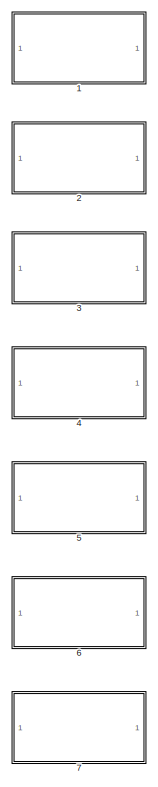
[diagram: root canvas - part 1/4, left side, full height]
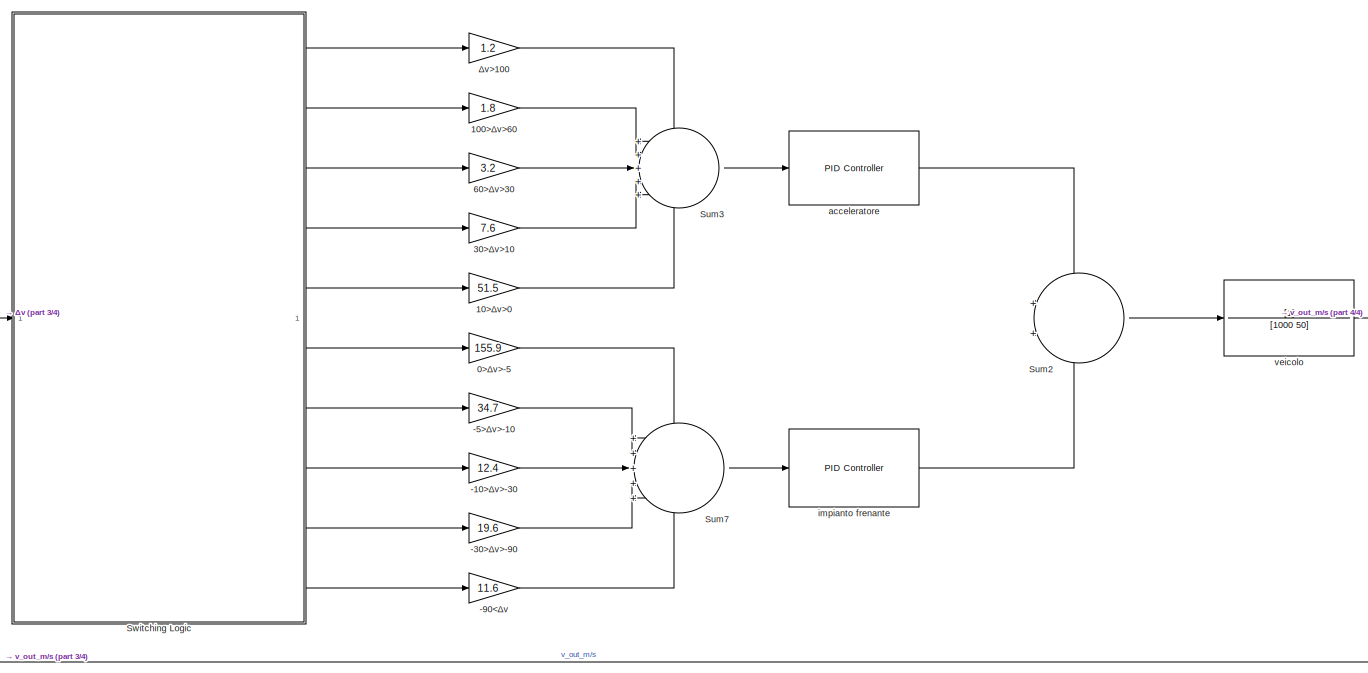
[diagram: root canvas - part 2/4, right side, full height]
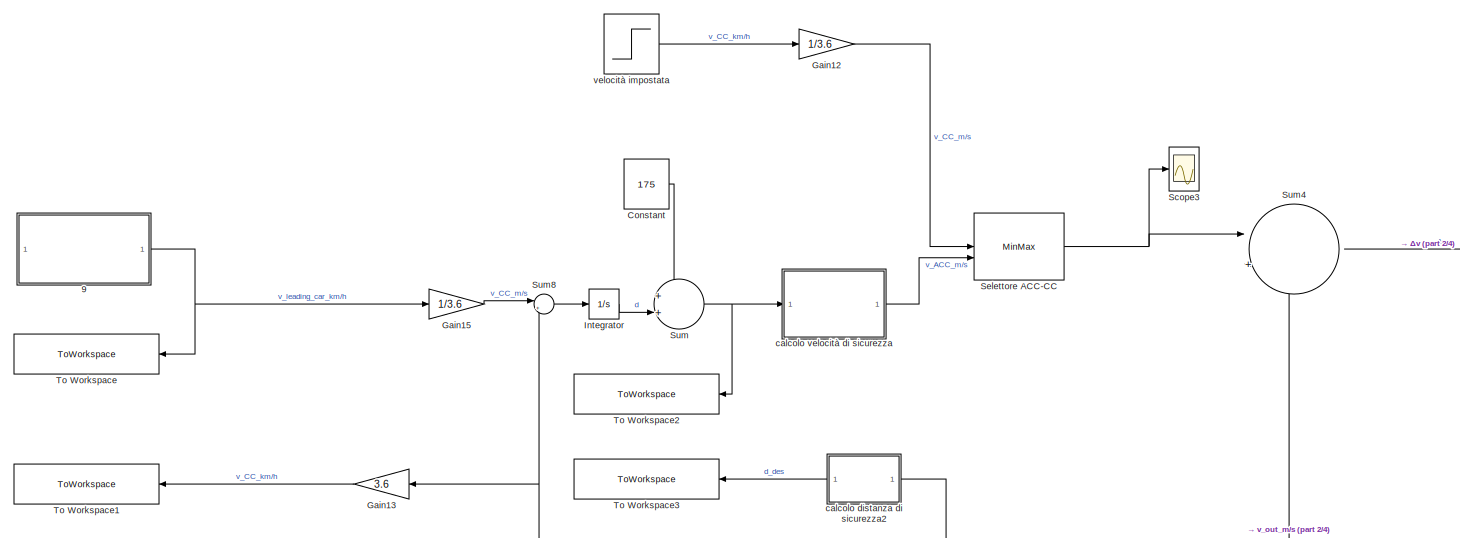
[diagram: root canvas - part 3/4, middle left region]
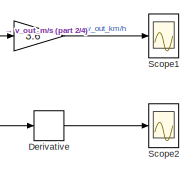
[diagram: root canvas - part 4/4, middle right region]
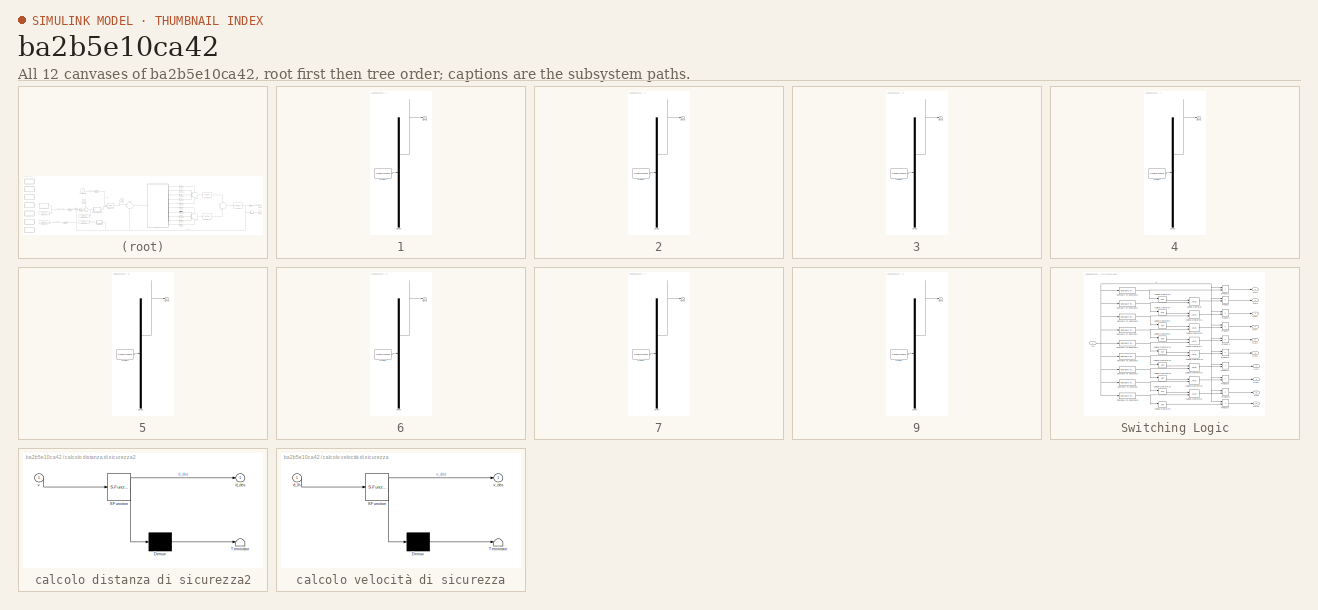
[diagram: thumbnail index - all 12 canvases of the model, root first then tree order]
MODEL slx_ba2b5e10ca42
KIND model
CONFIG AbsTol = auto
CONFIG EnableMultiTasking = off
CONFIG FixedStep = auto
CONFIG MaxStep = auto
CONFIG MinStep = auto
CONFIG RelTol = 1e-3
CONFIG SampleTimeConstraint = Unconstrained
CONFIG SolverName = VariableStepAuto
CONFIG StartTime = 0.0
CONFIG StopTime = 300
BLOCK [Gain]  
  Gain = 3.6
BLOCK [Gain] -10>Δv>-30
  Gain = 12.4
BLOCK [Gain] -30>Δv>-90
  Gain = 19.6
BLOCK [Gain] -5>Δv>-10
  Gain = 34.7
BLOCK [Gain] -90<Δv
  Gain = 11.6
BLOCK [Gain] 0>Δv>-5
  Gain = 155.9
BLOCK [SubSystem] 1
  ClipboardFcn = sigbuilder_block('clipboard');
  CloseFcn = sigbuilder_block('close');
  ContinueFcn = sigbuilder_block('continue');
  CopyFcn = sigbuilder_block('copy');
  DeleteFcn = sigbuilder_block('delete');
  LoadFcn = sigbuilder_block('load');
  MaskHideContents = on
  ModelCloseFcn = sigbuilder_block('modelClose');
  NameChangeFcn = sigbuilder_block('namechange');
  OpenFcn = sigbuilder_block('open',[34.8 5.4 766.8 731.4 ]);
  PauseFcn = sigbuilder_block('pause');
  PreSaveFcn = sigbuilder_block('preSave');
  StartFcn = sigbuilder_block('start');
  StopFcn = sigbuilder_block('stop');
  Tag = STV Subsys
BLOCK [Demux] 1/Demux
  DisplayOption = none
  Outputs = 1
  Tag = STV Demux
BLOCK [FromWorkspace] 1/FromWs
  Tag = STV FromWs
  VariableName = tuvar
BLOCK [Outport] 1/Signal 1
  Tag = STV Outport
BLOCK [Gain] 100>Δv>60
  Gain = 1.8
BLOCK [Gain] 10>Δv>0
  Gain = 51.5
BLOCK [SubSystem] 2
  ClipboardFcn = sigbuilder_block('clipboard');
  CloseFcn = sigbuilder_block('close');
  ContinueFcn = sigbuilder_block('continue');
  CopyFcn = sigbuilder_block('copy');
  DeleteFcn = sigbuilder_block('delete');
  LoadFcn = sigbuilder_block('load');
  MaskHideContents = on
  ModelCloseFcn = sigbuilder_block('modelClose');
  NameChangeFcn = sigbuilder_block('namechange');
  OpenFcn = sigbuilder_block('open',[34.8 5.4 766.8 731.4 ]);
  PauseFcn = sigbuilder_block('pause');
  PreSaveFcn = sigbuilder_block('preSave');
  StartFcn = sigbuilder_block('start');
  StopFcn = sigbuilder_block('stop');
  Tag = STV Subsys
BLOCK [Demux] 2/Demux
  DisplayOption = none
  Outputs = 1
  Tag = STV Demux
BLOCK [FromWorkspace] 2/FromWs
  Tag = STV FromWs
  VariableName = tuvar
BLOCK [Outport] 2/Signal 1
  Tag = STV Outport
BLOCK [SubSystem] 3
  ClipboardFcn = sigbuilder_block('clipboard');
  CloseFcn = sigbuilder_block('close');
  ContinueFcn = sigbuilder_block('continue');
  CopyFcn = sigbuilder_block('copy');
  DeleteFcn = sigbuilder_block('delete');
  LoadFcn = sigbuilder_block('load');
  MaskHideContents = on
  ModelCloseFcn = sigbuilder_block('modelClose');
  NameChangeFcn = sigbuilder_block('namechange');
  OpenFcn = sigbuilder_block('open',[34.8 5.4 766.8 731.4 ]);
  PauseFcn = sigbuilder_block('pause');
  PreSaveFcn = sigbuilder_block('preSave');
  StartFcn = sigbuilder_block('start');
  StopFcn = sigbuilder_block('stop');
  Tag = STV Subsys
BLOCK [Demux] 3/Demux
  DisplayOption = none
  Outputs = 1
  Tag = STV Demux
BLOCK [FromWorkspace] 3/FromWs
  Tag = STV FromWs
  VariableName = tuvar
BLOCK [Outport] 3/Signal 1
  Tag = STV Outport
BLOCK [Gain] 30>Δv>10
  Gain = 7.6
BLOCK [SubSystem] 4
  ClipboardFcn = sigbuilder_block('clipboard');
  CloseFcn = sigbuilder_block('close');
  ContinueFcn = sigbuilder_block('continue');
  CopyFcn = sigbuilder_block('copy');
  DeleteFcn = sigbuilder_block('delete');
  LoadFcn = sigbuilder_block('load');
  MaskHideContents = on
  ModelCloseFcn = sigbuilder_block('modelClose');
  NameChangeFcn = sigbuilder_block('namechange');
  OpenFcn = sigbuilder_block('open',[34.8 5.4 766.8 731.4 ]);
  PauseFcn = sigbuilder_block('pause');
  PreSaveFcn = sigbuilder_block('preSave');
  StartFcn = sigbuilder_block('start');
  StopFcn = sigbuilder_block('stop');
  Tag = STV Subsys
BLOCK [Demux] 4/Demux
  DisplayOption = none
  Outputs = 1
  Tag = STV Demux
BLOCK [FromWorkspace] 4/FromWs
  Tag = STV FromWs
  VariableName = tuvar
BLOCK [Outport] 4/Signal 1
  Tag = STV Outport
BLOCK [SubSystem] 5
  ClipboardFcn = sigbuilder_block('clipboard');
  CloseFcn = sigbuilder_block('close');
  ContinueFcn = sigbuilder_block('continue');
  CopyFcn = sigbuilder_block('copy');
  DeleteFcn = sigbuilder_block('delete');
  LoadFcn = sigbuilder_block('load');
  MaskHideContents = on
  ModelCloseFcn = sigbuilder_block('modelClose');
  NameChangeFcn = sigbuilder_block('namechange');
  OpenFcn = sigbuilder_block('open',[34.8 5.4 766.8 731.4 ]);
  PauseFcn = sigbuilder_block('pause');
  PreSaveFcn = sigbuilder_block('preSave');
  StartFcn = sigbuilder_block('start');
  StopFcn = sigbuilder_block('stop');
  Tag = STV Subsys
BLOCK [Demux] 5/Demux
  DisplayOption = none
  Outputs = 1
  Tag = STV Demux
BLOCK [FromWorkspace] 5/FromWs
  Tag = STV FromWs
  VariableName = tuvar
BLOCK [Outport] 5/Signal 1
  Tag = STV Outport
BLOCK [SubSystem] 6
  ClipboardFcn = sigbuilder_block('clipboard');
  CloseFcn = sigbuilder_block('close');
  ContinueFcn = sigbuilder_block('continue');
  CopyFcn = sigbuilder_block('copy');
  DeleteFcn = sigbuilder_block('delete');
  LoadFcn = sigbuilder_block('load');
  MaskHideContents = on
  ModelCloseFcn = sigbuilder_block('modelClose');
  NameChangeFcn = sigbuilder_block('namechange');
  OpenFcn = sigbuilder_block('open',[5.4 30 1525.2 738.6 ]);
  PauseFcn = sigbuilder_block('pause');
  PreSaveFcn = sigbuilder_block('preSave');
  StartFcn = sigbuilder_block('start');
  StopFcn = sigbuilder_block('stop');
  Tag = STV Subsys
BLOCK [Demux] 6/Demux
  DisplayOption = none
  Outputs = 1
  Tag = STV Demux
BLOCK [FromWorkspace] 6/FromWs
  Tag = STV FromWs
  VariableName = tuvar
BLOCK [Outport] 6/Signal 1
  Tag = STV Outport
BLOCK [Gain] 60>Δv>30
  Gain = 3.2
BLOCK [SubSystem] 7
  ClipboardFcn = sigbuilder_block('clipboard');
  CloseFcn = sigbuilder_block('close');
  ContinueFcn = sigbuilder_block('continue');
  CopyFcn = sigbuilder_block('copy');
  DeleteFcn = sigbuilder_block('delete');
  LoadFcn = sigbuilder_block('load');
  MaskHideContents = on
  ModelCloseFcn = sigbuilder_block('modelClose');
  NameChangeFcn = sigbuilder_block('namechange');
  OpenFcn = sigbuilder_block('open',[5.4 30 1525.2 738.6 ]);
  PauseFcn = sigbuilder_block('pause');
  PreSaveFcn = sigbuilder_block('preSave');
  StartFcn = sigbuilder_block('start');
  StopFcn = sigbuilder_block('stop');
  Tag = STV Subsys
BLOCK [Demux] 7/Demux
  DisplayOption = none
  Outputs = 1
  Tag = STV Demux
BLOCK [FromWorkspace] 7/FromWs
  Tag = STV FromWs
  VariableName = tuvar
BLOCK [Outport] 7/Signal 1
  Tag = STV Outport
BLOCK [SubSystem] 9
  ClipboardFcn = sigbuilder_block('clipboard');
  CloseFcn = sigbuilder_block('close');
  ContinueFcn = sigbuilder_block('continue');
  CopyFcn = sigbuilder_block('copy');
  DeleteFcn = sigbuilder_block('delete');
  LoadFcn = sigbuilder_block('load');
  MaskHideContents = on
  ModelCloseFcn = sigbuilder_block('modelClose');
  NameChangeFcn = sigbuilder_block('namechange');
  OpenFcn = sigbuilder_block('open',[5.4 30 1525.2 738.6 ]);
  PauseFcn = sigbuilder_block('pause');
  PreSaveFcn = sigbuilder_block('preSave');
  StartFcn = sigbuilder_block('start');
  StopFcn = sigbuilder_block('stop');
  Tag = STV Subsys
BLOCK [Demux] 9/Demux
  DisplayOption = none
  Outputs = 1
  Tag = STV Demux
BLOCK [FromWorkspace] 9/FromWs
  Tag = STV FromWs
  VariableName = tuvar
BLOCK [Outport] 9/Signal 1
  Tag = STV Outport
BLOCK [Constant] Constant
  Value = 175
BLOCK [Derivative] Derivative
BLOCK [Gain] Gain12
  Gain = 1/3.6
BLOCK [Gain] Gain13
  Gain = 3.6
BLOCK [Gain] Gain15
  Gain = 1/3.6
BLOCK [Integrator] Integrator
BLOCK [Scope] Scope1
  Floating = off
  NumInputPorts = 1
  ScopeSpecificationString = Simulink.scopes.TimeScopeBlockCfg('CurrentConfiguration', extmgr.ConfigurationSet(extmgr.Configuration('Core','General UI',true,'FigureColor',[0.941176470588235 0.941176470588235 0.941176470588235]),extmgr.Configuration('Core','Source UI',true),extmgr.Configuration('Sources','WiredSimulink',true,'DataLoggingVariableName','ScopeData1'),extmgr.Configuration('Visuals','Time Domain',true,'PlotType','L...<+1715ch>
BLOCK [Scope] Scope2
  Floating = off
  NumInputPorts = 1
  ScopeSpecificationString = Simulink.scopes.TimeScopeBlockCfg('CurrentConfiguration', extmgr.ConfigurationSet(extmgr.Configuration('Core','General UI',true,'FigureColor',[0.941176470588235 0.941176470588235 0.941176470588235]),extmgr.Configuration('Core','Source UI',true),extmgr.Configuration('Sources','WiredSimulink',true,'DataLoggingVariableName','ScopeData3'),extmgr.Configuration('Visuals','Time Domain',true,'PlotType','L...<+1709ch>
BLOCK [Scope] Scope3
  Floating = off
  NumInputPorts = 1
  ScopeSpecificationString = Simulink.scopes.TimeScopeBlockCfg('CurrentConfiguration', extmgr.ConfigurationSet(extmgr.Configuration('Core','General UI',true,'FigureColor',[0.941176470588235 0.941176470588235 0.941176470588235]),extmgr.Configuration('Core','Source UI',true),extmgr.Configuration('Sources','WiredSimulink',true,'DataLoggingVariableName','ScopeData4'),extmgr.Configuration('Visuals','Time Domain',true,'PlotType','L...<+1723ch>
BLOCK [MinMax] Selettore ACC-CC
  Inputs = 2
BLOCK [Sum] Sum
  Inputs = ++|
BLOCK [Sum] Sum2
BLOCK [Sum] Sum3
  Inputs = +++++
BLOCK [Sum] Sum4
  Inputs = |+-
BLOCK [Sum] Sum7
  Inputs = +++++
BLOCK [Sum] Sum8
  Inputs = |+-
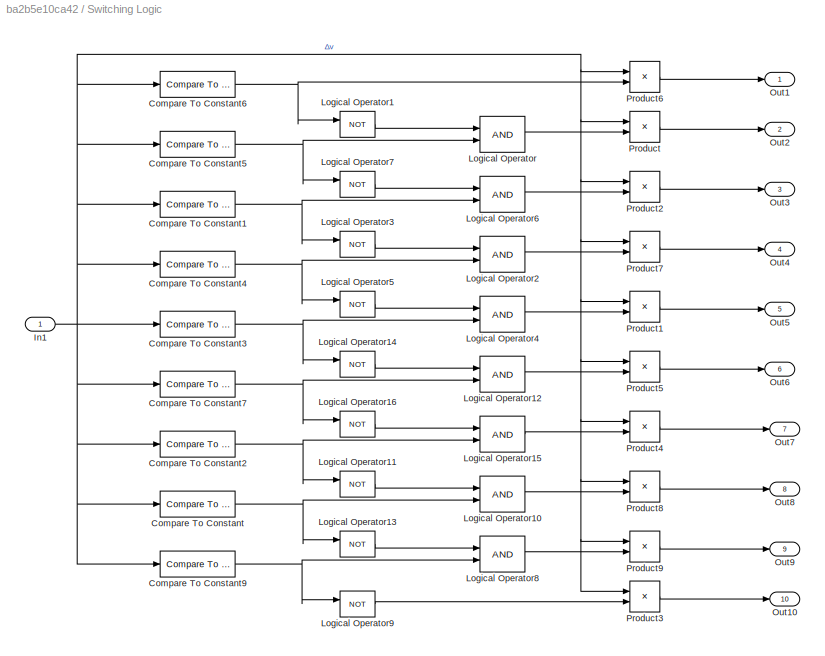
BLOCK [SubSystem] Switching Logic
BLOCK [Reference] Switching Logic/Compare To Constant  REF=simulink/Logic and Bit
Operations/Compare
To Constant
  SourceBlock = simulink/Logic and Bit\nOperations/Compare\nTo Constant
  SourceType = Compare To Constant
BLOCK [Reference] Switching Logic/Compare To Constant1  REF=simulink/Logic and Bit
Operations/Compare
To Constant
  SourceBlock = simulink/Logic and Bit\nOperations/Compare\nTo Constant
  SourceType = Compare To Constant
BLOCK [Reference] Switching Logic/Compare To Constant2  REF=simulink/Logic and Bit
Operations/Compare
To Constant
  SourceBlock = simulink/Logic and Bit\nOperations/Compare\nTo Constant
  SourceType = Compare To Constant
BLOCK [Reference] Switching Logic/Compare To Constant3  REF=simulink/Logic and Bit
Operations/Compare
To Constant
  SourceBlock = simulink/Logic and Bit\nOperations/Compare\nTo Constant
  SourceType = Compare To Constant
BLOCK [Reference] Switching Logic/Compare To Constant4  REF=simulink/Logic and Bit
Operations/Compare
To Constant
  SourceBlock = simulink/Logic and Bit\nOperations/Compare\nTo Constant
  SourceType = Compare To Constant
BLOCK [Reference] Switching Logic/Compare To Constant5  REF=simulink/Logic and Bit
Operations/Compare
To Constant
  SourceBlock = simulink/Logic and Bit\nOperations/Compare\nTo Constant
  SourceType = Compare To Constant
BLOCK [Reference] Switching Logic/Compare To Constant6  REF=simulink/Logic and Bit
Operations/Compare
To Constant
  SourceBlock = simulink/Logic and Bit\nOperations/Compare\nTo Constant
  SourceType = Compare To Constant
BLOCK [Reference] Switching Logic/Compare To Constant7  REF=simulink/Logic and Bit
Operations/Compare
To Constant
  SourceBlock = simulink/Logic and Bit\nOperations/Compare\nTo Constant
  SourceType = Compare To Constant
BLOCK [Reference] Switching Logic/Compare To Constant9  REF=simulink/Logic and Bit
Operations/Compare
To Constant
  SourceBlock = simulink/Logic and Bit\nOperations/Compare\nTo Constant
  SourceType = Compare To Constant
BLOCK [Inport] Switching Logic/In1
  IconDisplay = Signal name
BLOCK [Logic] Switching Logic/Logical Operator
  AllPortsSameDT = off
  OutDataTypeStr = boolean
BLOCK [Logic] Switching Logic/Logical Operator1
  AllPortsSameDT = off
  Operator = NOT
  OutDataTypeStr = boolean
BLOCK [Logic] Switching Logic/Logical Operator10
  AllPortsSameDT = off
  OutDataTypeStr = boolean
BLOCK [Logic] Switching Logic/Logical Operator11
  AllPortsSameDT = off
  Operator = NOT
  OutDataTypeStr = boolean
BLOCK [Logic] Switching Logic/Logical Operator12
  AllPortsSameDT = off
  OutDataTypeStr = boolean
BLOCK [Logic] Switching Logic/Logical Operator13
  AllPortsSameDT = off
  Operator = NOT
  OutDataTypeStr = boolean
BLOCK [Logic] Switching Logic/Logical Operator14
  AllPortsSameDT = off
  Operator = NOT
  OutDataTypeStr = boolean
BLOCK [Logic] Switching Logic/Logical Operator15
  AllPortsSameDT = off
  OutDataTypeStr = boolean
BLOCK [Logic] Switching Logic/Logical Operator16
  AllPortsSameDT = off
  Operator = NOT
  OutDataTypeStr = boolean
BLOCK [Logic] Switching Logic/Logical Operator2
  AllPortsSameDT = off
  OutDataTypeStr = boolean
BLOCK [Logic] Switching Logic/Logical Operator3
  AllPortsSameDT = off
  Operator = NOT
  OutDataTypeStr = boolean
BLOCK [Logic] Switching Logic/Logical Operator4
  AllPortsSameDT = off
  OutDataTypeStr = boolean
BLOCK [Logic] Switching Logic/Logical Operator5
  AllPortsSameDT = off
  Operator = NOT
  OutDataTypeStr = boolean
BLOCK [Logic] Switching Logic/Logical Operator6
  AllPortsSameDT = off
  OutDataTypeStr = boolean
BLOCK [Logic] Switching Logic/Logical Operator7
  AllPortsSameDT = off
  Operator = NOT
  OutDataTypeStr = boolean
BLOCK [Logic] Switching Logic/Logical Operator8
  AllPortsSameDT = off
  OutDataTypeStr = boolean
BLOCK [Logic] Switching Logic/Logical Operator9
  AllPortsSameDT = off
  Operator = NOT
  OutDataTypeStr = boolean
BLOCK [Outport] Switching Logic/Out1
BLOCK [Outport] Switching Logic/Out10
  Port = 10
BLOCK [Outport] Switching Logic/Out2
  Port = 2
BLOCK [Outport] Switching Logic/Out3
  Port = 3
BLOCK [Outport] Switching Logic/Out4
  Port = 4
BLOCK [Outport] Switching Logic/Out5
  Port = 5
BLOCK [Outport] Switching Logic/Out6
  Port = 6
BLOCK [Outport] Switching Logic/Out7
  Port = 7
BLOCK [Outport] Switching Logic/Out8
  Port = 8
BLOCK [Outport] Switching Logic/Out9
  Port = 9
BLOCK [Product] Switching Logic/Product
BLOCK [Product] Switching Logic/Product1
BLOCK [Product] Switching Logic/Product2
BLOCK [Product] Switching Logic/Product3
BLOCK [Product] Switching Logic/Product4
BLOCK [Product] Switching Logic/Product5
BLOCK [Product] Switching Logic/Product6
BLOCK [Product] Switching Logic/Product7
BLOCK [Product] Switching Logic/Product8
BLOCK [Product] Switching Logic/Product9
BLOCK [ToWorkspace] To Workspace
  FixptAsFi = on
  MaxDataPoints = inf
  SampleTime = -1
  VariableName = v_l
BLOCK [ToWorkspace] To Workspace1
  FixptAsFi = on
  MaxDataPoints = inf
  SampleTime = -1
  VariableName = v_h
BLOCK [ToWorkspace] To Workspace2
  FixptAsFi = on
  MaxDataPoints = inf
  SampleTime = -1
  VariableName = d_lh
BLOCK [ToWorkspace] To Workspace3
  FixptAsFi = on
  MaxDataPoints = inf
  SampleTime = -1
  VariableName = d_s
BLOCK [Reference] acceleratore  REF=slpidlib/PID Controller
  SourceBlock = slpidlib/PID Controller
  SourceType = PID 1dof
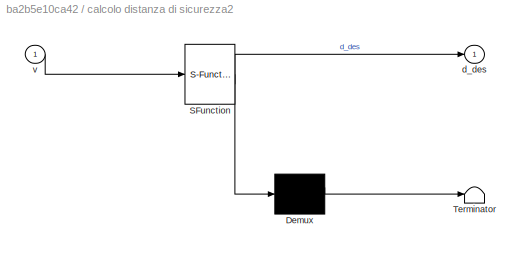
BLOCK [SubSystem] calcolo distanza di sicurezza2
  ErrorFcn = Stateflow.Translate.translate
  PermitHierarchicalResolution = ExplicitOnly
  SFBlockType = MATLAB Function
  TreatAsAtomicUnit = on
BLOCK [Demux] calcolo distanza di sicurezza2/ Demux 
  Outputs = 1
BLOCK [S-Function] calcolo distanza di sicurezza2/ SFunction 
  EnableBusSupport = off
  FunctionName = sf_sfun
  PortCounts = [1 2]
  SFcnIsStateOwnerBlock = off
  SFunctionDeploymentMode = off
  Tag = Stateflow S-Function 1
BLOCK [Terminator] calcolo distanza di sicurezza2/ Terminator 
BLOCK [Outport] calcolo distanza di sicurezza2/d_des
BLOCK [Inport] calcolo distanza di sicurezza2/v
BLOCK [SubSystem] calcolo velocità di sicurezza
  ErrorFcn = Stateflow.Translate.translate
  PermitHierarchicalResolution = ExplicitOnly
  SFBlockType = MATLAB Function
  TreatAsAtomicUnit = on
BLOCK [Demux] calcolo velocità di sicurezza/ Demux 
  Outputs = 1
BLOCK [S-Function] calcolo velocità di sicurezza/ SFunction 
  EnableBusSupport = off
  FunctionName = sf_sfun
  PortCounts = [1 2]
  SFcnIsStateOwnerBlock = off
  SFunctionDeploymentMode = off
  Tag = Stateflow S-Function 3
BLOCK [Terminator] calcolo velocità di sicurezza/ Terminator 
BLOCK [Inport] calcolo velocità di sicurezza/d_lh
BLOCK [Outport] calcolo velocità di sicurezza/v_des
BLOCK [Reference] impianto frenante  REF=slpidlib/PID Controller
  SourceBlock = slpidlib/PID Controller
  SourceType = PID 1dof
BLOCK [TransferFcn] veicolo
  Denominator = [1000 50]
BLOCK [Step] velocità impostata
  After = 130
  SampleTime = 0.001
BLOCK [Gain] Δv>100
  Gain = 1.2
LINE  :1 -> Scope1:1
LINE -10>Δv>-30:1 -> Sum7:3
LINE -30>Δv>-90:1 -> Sum7:4
LINE -5>Δv>-10:1 -> Sum7:2
LINE -90<Δv:1 -> Sum7:5
LINE 0>Δv>-5:1 -> Sum7:1
LINE 100>Δv>60:1 -> Sum3:2
LINE 10>Δv>0:1 -> Sum3:5
LINE 30>Δv>10:1 -> Sum3:4
LINE 60>Δv>30:1 -> Sum3:3
NET 9:1 -> Gain15:1, To Workspace:1
LINE Constant:1 -> Sum:1
LINE Derivative:1 -> Scope2:1
LINE Gain12:1 -> Selettore ACC-CC:1
LINE Gain13:1 -> To Workspace1:1
LINE Gain15:1 -> Sum8:1
LINE Integrator:1 -> Sum:2
NET Selettore ACC-CC:1 -> Scope3:1, Sum4:1
LINE Sum2:1 -> veicolo:1
LINE Sum3:1 -> acceleratore:1
LINE Sum4:1 -> Switching Logic:1
LINE Sum7:1 -> impianto frenante:1
LINE Sum8:1 -> Integrator:1
NET Sum:1 -> To Workspace2:1, calcolo velocità di sicurezza:1
NET Switching Logic/Compare To Constant1:1 -> Switching Logic/Logical Operator3:1, Switching Logic/Logical Operator6:2
NET Switching Logic/Compare To Constant2:1 -> Switching Logic/Logical Operator11:1, Switching Logic/Logical Operator15:2
NET Switching Logic/Compare To Constant3:1 -> Switching Logic/Logical Operator14:1, Switching Logic/Logical Operator4:2
NET Switching Logic/Compare To Constant4:1 -> Switching Logic/Logical Operator2:2, Switching Logic/Logical Operator5:1
NET Switching Logic/Compare To Constant5:1 -> Switching Logic/Logical Operator7:1, Switching Logic/Logical Operator:2
NET Switching Logic/Compare To Constant6:1 -> Switching Logic/Logical Operator1:1, Switching Logic/Product6:2
NET Switching Logic/Compare To Constant7:1 -> Switching Logic/Logical Operator12:2, Switching Logic/Logical Operator16:1
NET Switching Logic/Compare To Constant9:1 -> Switching Logic/Logical Operator8:2, Switching Logic/Logical Operator9:1
NET Switching Logic/Compare To Constant:1 -> Switching Logic/Logical Operator10:2, Switching Logic/Logical Operator13:1
NET Switching Logic/In1:1 -> Switching Logic/Compare To Constant1:1, Switching Logic/Compare To Constant2:1, Switching Logic/Compare To Constant3:1, Switching Logic/Compare To Constant4:1, Switching Logic/Compare To Constant5:1, Switching Logic/Compare To Constant6:1, Switching Logic/Compare To Constant7:1, Switching Logic/Compare To Constant9:1, Switching Logic/Compare To Constant:1, Switching Logic/Product1:1, Switching Logic/Product2:1, Switching Logic/Product3:1, Switching Logic/Product4:1, Switching Logic/Product5:1, Switching Logic/Product6:1, Switching Logic/Product7:1, Switching Logic/Product8:1, Switching Logic/Product9:1, Switching Logic/Product:1
LINE Switching Logic/Logical Operator10:1 -> Switching Logic/Product8:2
LINE Switching Logic/Logical Operator11:1 -> Switching Logic/Logical Operator10:1
LINE Switching Logic/Logical Operator12:1 -> Switching Logic/Product5:2
LINE Switching Logic/Logical Operator13:1 -> Switching Logic/Logical Operator8:1
LINE Switching Logic/Logical Operator14:1 -> Switching Logic/Logical Operator12:1
LINE Switching Logic/Logical Operator15:1 -> Switching Logic/Product4:2
LINE Switching Logic/Logical Operator16:1 -> Switching Logic/Logical Operator15:1
LINE Switching Logic/Logical Operator1:1 -> Switching Logic/Logical Operator:1
LINE Switching Logic/Logical Operator2:1 -> Switching Logic/Product7:2
LINE Switching Logic/Logical Operator3:1 -> Switching Logic/Logical Operator2:1
LINE Switching Logic/Logical Operator4:1 -> Switching Logic/Product1:2
LINE Switching Logic/Logical Operator5:1 -> Switching Logic/Logical Operator4:1
LINE Switching Logic/Logical Operator6:1 -> Switching Logic/Product2:2
LINE Switching Logic/Logical Operator7:1 -> Switching Logic/Logical Operator6:1
LINE Switching Logic/Logical Operator8:1 -> Switching Logic/Product9:2
LINE Switching Logic/Logical Operator9:1 -> Switching Logic/Product3:2
LINE Switching Logic/Logical Operator:1 -> Switching Logic/Product:2
LINE Switching Logic/Product1:1 -> Switching Logic/Out5:1
LINE Switching Logic/Product2:1 -> Switching Logic/Out3:1
LINE Switching Logic/Product3:1 -> Switching Logic/Out10:1
LINE Switching Logic/Product4:1 -> Switching Logic/Out7:1
LINE Switching Logic/Product5:1 -> Switching Logic/Out6:1
LINE Switching Logic/Product6:1 -> Switching Logic/Out1:1
LINE Switching Logic/Product7:1 -> Switching Logic/Out4:1
LINE Switching Logic/Product8:1 -> Switching Logic/Out8:1
LINE Switching Logic/Product9:1 -> Switching Logic/Out9:1
LINE Switching Logic/Product:1 -> Switching Logic/Out2:1
LINE Switching Logic:1 -> Δv>100:1
LINE Switching Logic:10 -> -90<Δv:1
LINE Switching Logic:2 -> 100>Δv>60:1
LINE Switching Logic:3 -> 60>Δv>30:1
LINE Switching Logic:4 -> 30>Δv>10:1
LINE Switching Logic:5 -> 10>Δv>0:1
LINE Switching Logic:6 -> 0>Δv>-5:1
LINE Switching Logic:7 -> -5>Δv>-10:1
LINE Switching Logic:8 -> -10>Δv>-30:1
LINE Switching Logic:9 -> -30>Δv>-90:1
LINE acceleratore:1 -> Sum2:1
LINE calcolo distanza di sicurezza2:1 -> To Workspace3:1
LINE calcolo velocità di sicurezza:1 -> Selettore ACC-CC:2
LINE impianto frenante:1 -> Sum2:2
NET veicolo:1 ->  :1, Derivative:1, Gain13:1, Sum4:2, Sum8:2, calcolo distanza di sicurezza2:1
LINE velocità impostata:1 -> Gain12:1
LINE Δv>100:1 -> Sum3:1
note: NET lines group one-source signal fan-out (src -> all destinations, sorted); 1:1 wires keep LINE
CHART calcolo velocità di sicurezza states=1 transitions=1
  STATE_LABEL 'eML_blk_kernel()'
  STATE_LABEL 'SCRIPT:\nfunction v_des = fcn(d_lh)\n    h_1=0.088;           %definizione h_1\n    h_2=1.511;           %definizione h_2\n    d_f= 2.25;           %definizione d_f\n    % calcolo v_des\n    if (d_lh<d_f)\n        v_des=0;    \n    else\n        v_des = (-h_2+sqrt(h_2^2-4*h_1*(d_f-d_lh)))/(2*h_1);\nend\n\n'
CHART calcolo distanza di sicurezza2 states=1 transitions=1
  STATE_LABEL 'eML_blk_kernel()'
  STATE_LABEL 'SCRIPT:\nfunction d_des = fcn(v)\nh2=1.511;\nh3=0.088;\nth=h2+h3*v;\nd0= 2.25;\n\n\nd_des =  v*th+d0;\n\n'
CHART  states=0 transitions=0
CHART  states=0 transitions=0
